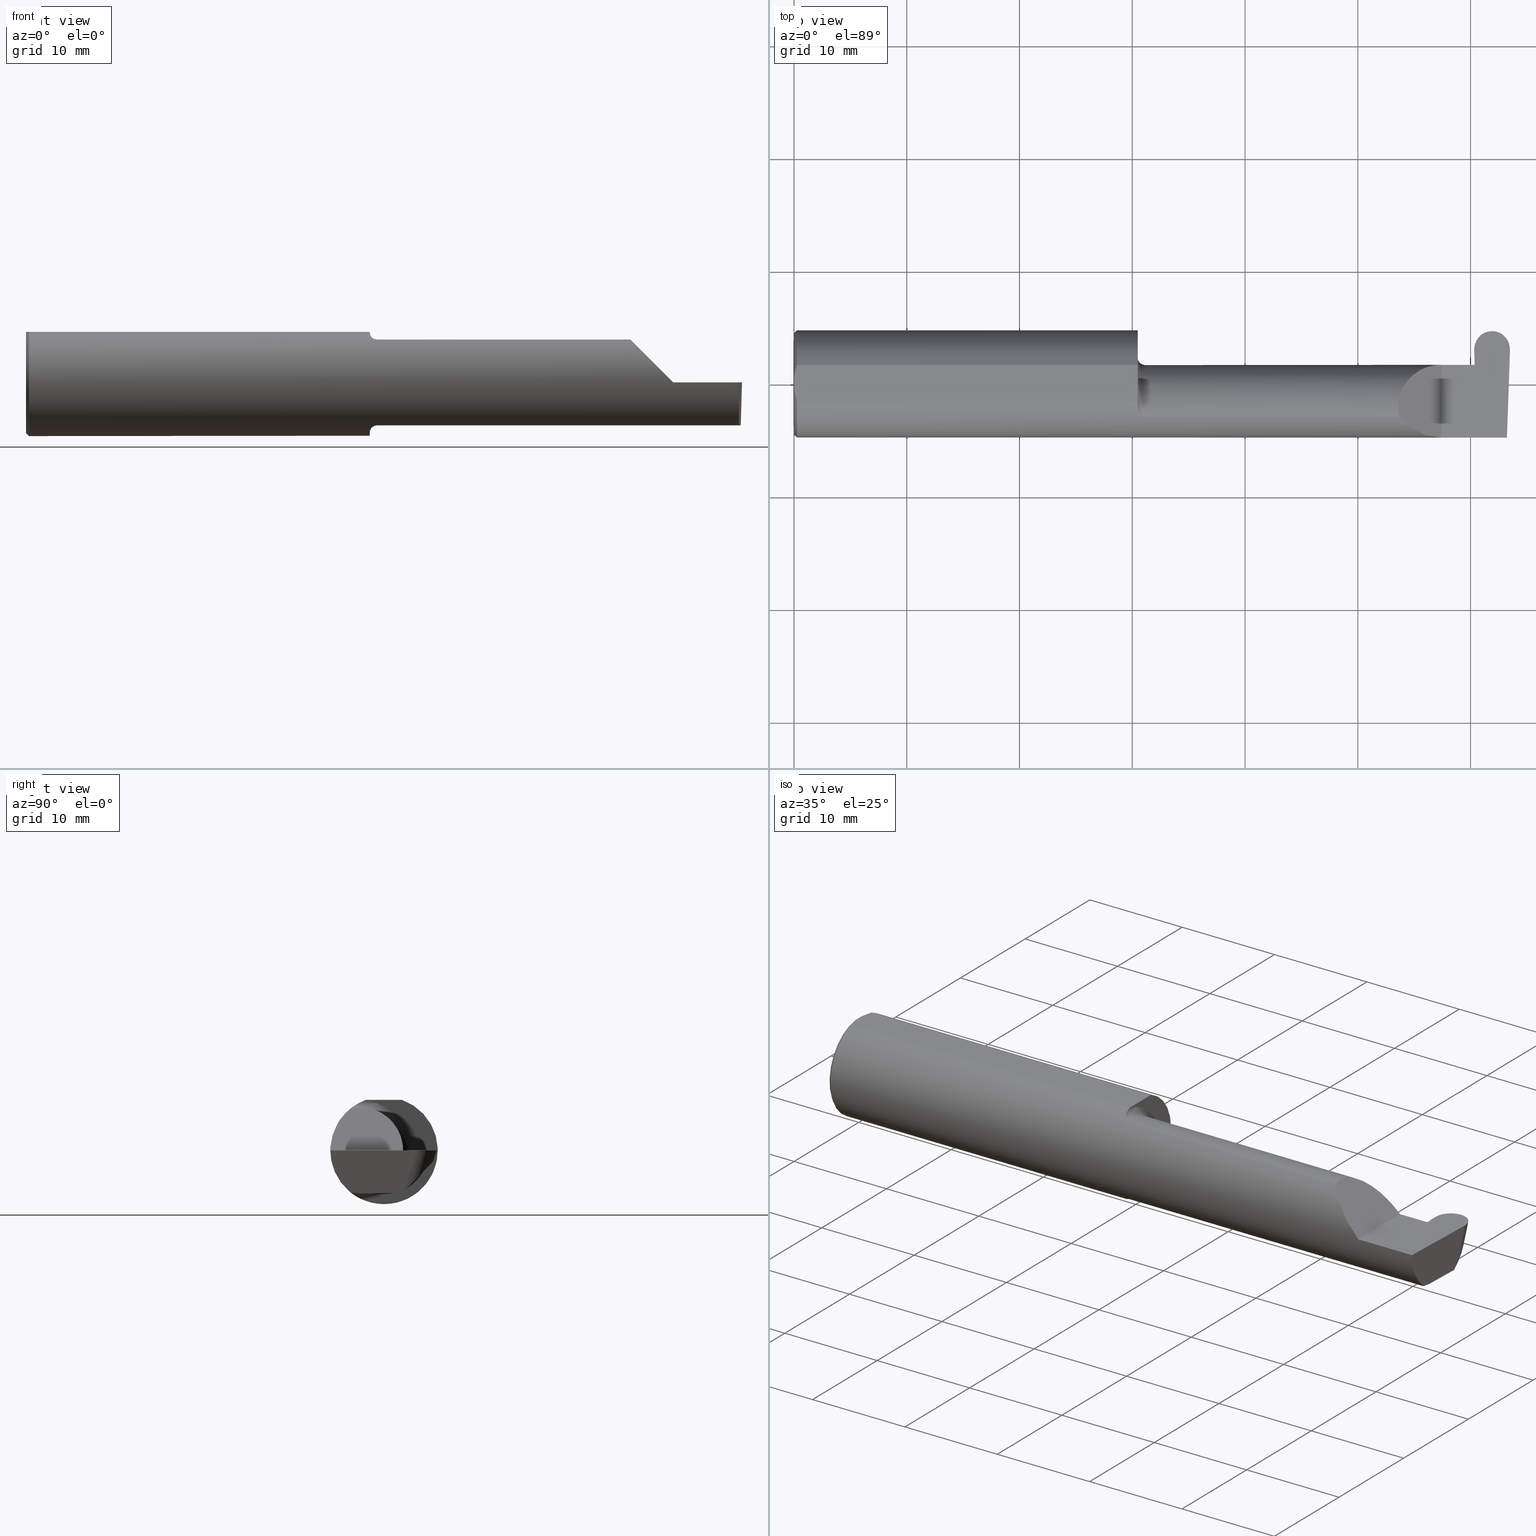
[diagram: canonical four-view strip — front | top / right | iso, engineering-drawing reading convention]
A machine part, canonical four-view strip (front | top / right | iso — engineering-drawing reading convention). The complete STEP part file that produces these views, byte-faithful:
ISO-10303-21;
HEADER;
FILE_DESCRIPTION (( 'STEP AP203' ),
    '1' );
FILE_NAME ('222203-GFR124-20.STEP',
    '2024-06-28T18:56:53',
    ( '' ),
    ( '' ),
    'SwSTEP 2.0',
    'SolidWorks 2024',
    '' );
FILE_SCHEMA (( 'CONFIG_CONTROL_DESIGN' ));
ENDSEC;

DATA;
#1 = CARTESIAN_POINT ( 'NONE',  ( 0.000000000000000000, 0.1873499999999998500, 0.1763499999999999235 ) ) ;
#2 = CARTESIAN_POINT ( 'NONE',  ( 1.202945243422983479, -0.09312071749437436652, 0.1626553472577906001 ) ) ;
#3 = ORIENTED_EDGE ( 'NONE', *, *, #589, .T. ) ;
#4 = LENGTH_MEASURE_WITH_UNIT ( LENGTH_MEASURE( 0.02539999999999999897 ), #649 );
#5 = CARTESIAN_POINT ( 'NONE',  ( 1.200353553376444671, -0.07868116735658677030, 0.1701139256562800572 ) ) ;
#6 = CARTESIAN_POINT ( 'NONE',  ( 0.01000000000000013205, 0.06325108694718235836, 0.1763499999999999235 ) ) ;
#7 = EDGE_CURVE ( 'NONE', #603, #339, #379, .T. ) ;
#8 = CIRCLE ( 'NONE', #465, 0.1873499999999999888 ) ;
#9 = DIRECTION ( 'NONE',  ( 0.000000000000000000, 0.000000000000000000, 1.000000000000000000 ) ) ;
#10 = VECTOR ( 'NONE', #368, 39.37007874015748143 ) ;
#11 = DIRECTION ( 'NONE',  ( -1.000000000000000000, -7.267260269538567824E-17, -0.000000000000000000 ) ) ;
#12 = ORIENTED_EDGE ( 'NONE', *, *, #482, .F. ) ;
#13 = LINE ( 'NONE', #230, #568 ) ;
#14 = CARTESIAN_POINT ( 'NONE',  ( 1.199999999999999956, -0.06851976604679066440, 0.1743704796142198643 ) ) ;
#15 = EDGE_LOOP ( 'NONE', ( #556, #464, #670, #225, #193, #531, #587, #43, #585, #360, #419, #292, #318 ) ) ;
#16 = CARTESIAN_POINT ( 'NONE',  ( 2.475377307836966079, 0.1846499999999998975, -4.652953611126238856E-18 ) ) ;
#17 = EDGE_CURVE ( 'NONE', #704, #325, #497, .T. ) ;
#18 = CARTESIAN_POINT ( 'NONE',  ( 0.000000000000000000, -0.01880691362238934641, 0.1763499999999999235 ) ) ;
#19 = CARTESIAN_POINT ( 'NONE',  ( 2.260000000000000231, 0.06664999999999994540, 1.592040838891559588E-16 ) ) ;
#20 = DATE_AND_TIME ( #345, #56 ) ;
#22 = AXIS2_PLACEMENT_3D ( 'NONE', #569, #458, #296 ) ;
#21 = CARTESIAN_POINT ( 'NONE',  ( 1.225000000000000089, -0.08335000000000007681, 0.000000000000000000 ) ) ;
#23 = CARTESIAN_POINT ( 'NONE',  ( 2.367407066079999733, 0.06655862405286443184, -0.005234924505372787196 ) ) ;
#24 = EDGE_LOOP ( 'NONE', ( #247, #65, #134, #105 ) ) ;
#25 = ADVANCED_BREP_SHAPE_REPRESENTATION ( '222203-GFR124-20', ( #423, #477 ), #438 ) ;
#26 = CALENDAR_DATE ( 2024, 28, 6 ) ;
#27 = CARTESIAN_POINT ( 'NONE',  ( 2.379261785862150980, 0.06409798100086946948, -0.1462050705423017238 ) ) ;
#28 = DIRECTION ( 'NONE',  ( -0.03489949670249634789, 0.9993908270190959842, -0.000000000000000000 ) ) ;
#29 = VERTEX_POINT ( 'NONE', #499 ) ;
#30 = CARTESIAN_POINT ( 'NONE',  ( 0.01000000000000013205, -0.06325108694718235836, 0.1763499999999999235 ) ) ;
#31 = PLANE ( 'NONE',  #22 ) ;
#32 = EDGE_CURVE ( 'NONE', #432, #120, #115, .T. ) ;
#33 = VERTEX_POINT ( 'NONE', #708 ) ;
#34 = DATE_AND_TIME ( #299, #38 ) ;
#35 = APPROVAL ( #91, 'UNSPECIFIED' ) ;
#36 = DIRECTION ( 'NONE',  ( 7.267260269538567824E-17, -1.000000000000000000, 0.000000000000000000 ) ) ;
#37 = AXIS2_PLACEMENT_3D ( 'NONE', #612, #128, #505 ) ;
#38 = LOCAL_TIME ( 11, 56, 53.00000000000000000, #684 ) ;
#39 =( BOUNDED_CURVE ( )  B_SPLINE_CURVE ( 3, ( #683, #462, #347, #616 ),
 .UNSPECIFIED., .F., .F. ) 
 B_SPLINE_CURVE_WITH_KNOTS ( ( 4, 4 ),
 ( 4.712388980384688786, 5.606916381293134855 ),
 .UNSPECIFIED. ) 
 CURVE ( )  GEOMETRIC_REPRESENTATION_ITEM ( )  RATIONAL_B_SPLINE_CURVE ( ( 1.000000000000000000, 0.9344226172588805390, 0.9344226172588805390, 1.000000000000000000 ) ) 
 REPRESENTATION_ITEM ( '' )  );
#40 = VERTEX_POINT ( 'NONE', #216 ) ;
#41 = PERSON_AND_ORGANIZATION_ROLE ( 'creator' ) ;
#42 = CARTESIAN_POINT ( 'NONE',  ( 2.495889335989002422, 0.07225145685232294002, -0.1380515946908277558 ) ) ;
#43 = ORIENTED_EDGE ( 'NONE', *, *, #150, .F. ) ;
#44 = CARTESIAN_POINT ( 'NONE',  ( 2.375802096645578398, 0.1301396316170286283, -0.08016341992612141532 ) ) ;
#45 = ADVANCED_FACE ( 'NONE', ( #222 ), #598, .F. ) ;
#46 = ORIENTED_EDGE ( 'NONE', *, *, #136, .F. ) ;
#47 = CARTESIAN_POINT ( 'NONE',  ( 2.400185001724758571, 0.1718204462013806222, -0.03848260534176896341 ) ) ;
#48 = VERTEX_POINT ( 'NONE', #651 ) ;
#49 = DIRECTION ( 'NONE',  ( -0.03489949670249442581, -0.9993908270190959842, 0.000000000000000000 ) ) ;
#50 = EDGE_LOOP ( 'NONE', ( #146, #494, #314, #503, #511, #607 ) ) ;
#51 = ADVANCED_FACE ( 'NONE', ( #333 ), #116, .F. ) ;
#52 = CARTESIAN_POINT ( 'NONE',  ( 2.370339365822884847, 0.2344171368549177459, 0.02411408531176888886 ) ) ;
#53 = ORIENTED_EDGE ( 'NONE', *, *, #579, .T. ) ;
#54 = CARTESIAN_POINT ( 'NONE',  ( 1.219511795768554396, -0.1163687266324236608, -0.1468371510166787408 ) ) ;
#55 = DIRECTION ( 'NONE',  ( 1.000000000000000000, -0.000000000000000000, -0.000000000000000000 ) ) ;
#57 = LINE ( 'NONE', #1, #110 ) ;
#56 = LOCAL_TIME ( 11, 56, 53.00000000000000000, #251 ) ;
#58 =( BOUNDED_CURVE ( )  B_SPLINE_CURVE ( 3, ( #106, #310, #370, #210 ),
 .UNSPECIFIED., .F., .T. ) 
 B_SPLINE_CURVE_WITH_KNOTS ( ( 4, 4 ),
 ( 5.852427379562172405, 6.746954780470620250 ),
 .UNSPECIFIED. ) 
 CURVE ( )  GEOMETRIC_REPRESENTATION_ITEM ( )  RATIONAL_B_SPLINE_CURVE ( ( 1.000000000000000000, 0.9344226172588802060, 0.9344226172588802060, 1.000000000000000000 ) ) 
 REPRESENTATION_ITEM ( '' )  );
#59 = VERTEX_POINT ( 'NONE', #76 ) ;
#60 = DIRECTION ( 'NONE',  ( 0.000000000000000000, 0.9510565162951534202, -0.3090169943749481174 ) ) ;
#61 = DIRECTION ( 'NONE',  ( -1.000000000000000000, -7.267260269538567824E-17, -0.000000000000000000 ) ) ;
#62 = EDGE_LOOP ( 'NONE', ( #434, #302, #229, #214 ) ) ;
#63 = CARTESIAN_POINT ( 'NONE',  ( 2.489235021721937002, -0.1873499999999999888, 0.000000000000000000 ) ) ;
#64 = DIRECTION ( 'NONE',  ( 0.000000000000000000, 1.000000000000000000, 0.000000000000000000 ) ) ;
#65 = ORIENTED_EDGE ( 'NONE', *, *, #111, .T. ) ;
#66 = DIRECTION ( 'NONE',  ( -0.000000000000000000, 1.000000000000000000, -0.000000000000000000 ) ) ;
#67 = AXIS2_PLACEMENT_3D ( 'NONE', #169, #342, #165 ) ;
#68 = CARTESIAN_POINT ( 'NONE',  ( 2.437939523532632435, 0.1846500000000000363, 0.000000000000000000 ) ) ;
#69 = ORIENTED_EDGE ( 'NONE', *, *, #471, .F. ) ;
#70 = EDGE_CURVE ( 'NONE', #173, #124, #673, .T. ) ;
#71 = CARTESIAN_POINT ( 'NONE',  ( 2.378834654010996807, 0.07225145685232267634, -0.1380515946908280056 ) ) ;
#72 = CARTESIAN_POINT ( 'NONE',  ( 1.199999999999999956, 0.000000000000000000, 0.000000000000000000 ) ) ;
#73 = CARTESIAN_POINT ( 'NONE',  ( 2.376713715390371906, 0.06655862405288431871, -0.005234924505376662568 ) ) ;
#74 = EDGE_CURVE ( 'NONE', #421, #59, #39, .T. ) ;
#75 = PLANE ( 'NONE',  #428 ) ;
#76 = CARTESIAN_POINT ( 'NONE',  ( 2.113883229301068312, -0.1172600179964009698, 0.1461167706989301152 ) ) ;
#77 = ORIENTED_EDGE ( 'NONE', *, *, #218, .F. ) ;
#79 = VECTOR ( 'NONE', #509, 39.37007874015748143 ) ;
#78 = CARTESIAN_POINT ( 'NONE',  ( 2.090221225029925911, -0.01530148607434185341, 0.1697787749700727655 ) ) ;
#80 = CIRCLE ( 'NONE', #37, 0.1773499999999999521 ) ;
#81 = CARTESIAN_POINT ( 'NONE',  ( 2.379376900814295315, -0.08346159389558735486, -0.1500000000000000500 ) ) ;
#82 = ORIENTED_EDGE ( 'NONE', *, *, #599, .T. ) ;
#83 = CARTESIAN_POINT ( 'NONE',  ( 0.000000000000000000, 0.000000000000000000, 0.000000000000000000 ) ) ;
#84 = PLANE ( 'NONE',  #157 ) ;
#85 = EDGE_CURVE ( 'NONE', #240, #442, #324, .T. ) ;
#86 = DIRECTION ( 'NONE',  ( 1.000000000000000000, 0.000000000000000000, 0.000000000000000000 ) ) ;
#87 = VERTEX_POINT ( 'NONE', #400 ) ;
#88 = PERSON_AND_ORGANIZATION ( #95, #373 ) ;
#89 = FACE_OUTER_BOUND ( 'NONE', #540, .T. ) ;
#90 = ORIENTED_EDGE ( 'NONE', *, *, #614, .F. ) ;
#91 = APPROVAL_STATUS ( 'not_yet_approved' ) ;
#92 = DIRECTION ( 'NONE',  ( -0.000000000000000000, 1.000000000000000000, -0.000000000000000000 ) ) ;
#93 = AXIS2_PLACEMENT_3D ( 'NONE', #658, #389, #60 ) ;
#94 = EDGE_CURVE ( 'NONE', #124, #139, #613, .T. ) ;
#95 = PERSON ( 'UNSPECIFIED', 'UNSPECIFIED', 'UNSPECIFIED', ('UNSPECIFIED'), ('UNSPECIFIED'), ('UNSPECIFIED') ) ;
#96 = CARTESIAN_POINT ( 'NONE',  ( 1.202960551809340028, -0.09317341542745755101, -0.1626248379125195820 ) ) ;
#97 = ORIENTED_EDGE ( 'NONE', *, *, #313, .T. ) ;
#98 = CARTESIAN_POINT ( 'NONE',  ( 1.201843912362378308, -0.08846956905169099661, -0.1652353808078971809 ) ) ;
#99 = EDGE_LOOP ( 'NONE', ( #107, #209, #305, #167 ) ) ;
#100 = CARTESIAN_POINT ( 'NONE',  ( 2.367467983378090501, 0.06661954135095482510, -0.001744974835124260808 ) ) ;
#101 = CONICAL_SURFACE ( 'NONE', #486, 0.1773499999999999521, 0.7853981633974431720 ) ;
#102 = VERTEX_POINT ( 'NONE', #23 ) ;
#103 = CARTESIAN_POINT ( 'NONE',  ( 1.199999999999999956, -0.07368234487347197215, -0.1723418180300747837 ) ) ;
#104 = EDGE_CURVE ( 'NONE', #377, #156, #406, .T. ) ;
#105 = ORIENTED_EDGE ( 'NONE', *, *, #542, .T. ) ;
#106 = CARTESIAN_POINT ( 'NONE',  ( 2.489130585478359858, -0.1172600179964006645, -0.1461167706989303094 ) ) ;
#107 = ORIENTED_EDGE ( 'NONE', *, *, #272, .T. ) ;
#108 = DIRECTION ( 'NONE',  ( 0.9992386149554828290, 0.03489418134010904143, 0.01745240643728359145 ) ) ;
#109 = CARTESIAN_POINT ( 'NONE',  ( -0.001039370078739994957, 0.1723030515431495657, -0.03799999999999999906 ) ) ;
#110 = VECTOR ( 'NONE', #66, 39.37007874015748143 ) ;
#111 = EDGE_CURVE ( 'NONE', #120, #617, #354, .T. ) ;
#113 = CARTESIAN_POINT ( 'NONE',  ( 2.437939523532632435, 0.1846500000000000363, 0.000000000000000000 ) ) ;
#112 = APPROVAL_PERSON_ORGANIZATION ( #194, #127, #624 ) ;
#114 = CARTESIAN_POINT ( 'NONE',  ( 0.01000000000000013205, 0.06325108694718235836, 0.1763499999999999235 ) ) ;
#115 = LINE ( 'NONE', #219, #148 ) ;
#116 = PLANE ( 'NONE',  #681 ) ;
#117 = CARTESIAN_POINT ( 'NONE',  ( 2.379331556216794041, 0.06030305154315079852, -0.1500000000000000500 ) ) ;
#118 = CARTESIAN_POINT ( 'NONE',  ( 0.001595548104417008695, -0.03385300050298640367, 0.1763499999999999235 ) ) ;
#119 = ADVANCED_FACE ( 'NONE', ( #412 ), #31, .F. ) ;
#120 = VERTEX_POINT ( 'NONE', #142 ) ;
#121 = DIRECTION ( 'NONE',  ( -1.000000000000000000, -0.000000000000000000, -0.000000000000000000 ) ) ;
#122 = VECTOR ( 'NONE', #427, 39.37007874015748143 ) ;
#123 = LINE ( 'NONE', #490, #317 ) ;
#124 = VERTEX_POINT ( 'NONE', #455 ) ;
#125 = EDGE_CURVE ( 'NONE', #120, #156, #397, .T. ) ;
#126 = PERSON_AND_ORGANIZATION ( #95, #373 ) ;
#127 = APPROVAL ( #516, 'UNSPECIFIED' ) ;
#128 = DIRECTION ( 'NONE',  ( -1.000000000000000000, -0.000000000000000000, -0.000000000000000000 ) ) ;
#129 =( BOUNDED_CURVE ( )  B_SPLINE_CURVE ( 3, ( #642, #422, #638, #703 ),
 .UNSPECIFIED., .F., .F. ) 
 B_SPLINE_CURVE_WITH_KNOTS ( ( 4, 4 ),
 ( 0.8789888184544196736, 1.107026853503863650 ),
 .UNSPECIFIED. ) 
 CURVE ( )  GEOMETRIC_REPRESENTATION_ITEM ( )  RATIONAL_B_SPLINE_CURVE ( ( 1.000000000000000000, 0.9956712472009929815, 0.9956712472009929815, 1.000000000000000000 ) ) 
 REPRESENTATION_ITEM ( '' )  );
#130 = DIRECTION ( 'NONE',  ( 1.000000000000000000, 7.267260269538567824E-17, 0.000000000000000000 ) ) ;
#131 = ORIENTED_EDGE ( 'NONE', *, *, #528, .T. ) ;
#132 = CARTESIAN_POINT ( 'NONE',  ( 1.199999999999999956, -0.08335000000000007681, 0.000000000000000000 ) ) ;
#133 = CARTESIAN_POINT ( 'NONE',  ( 2.376713715390371906, 0.06655862405288431871, -0.005234924505376662568 ) ) ;
#134 = ORIENTED_EDGE ( 'NONE', *, *, #282, .T. ) ;
#135 = APPROVAL_STATUS ( 'not_yet_approved' ) ;
#136 = EDGE_CURVE ( 'NONE', #139, #48, #349, .T. ) ;
#137 = DIRECTION ( 'NONE',  ( 1.000000000000000000, 0.000000000000000000, 0.000000000000000000 ) ) ;
#138 = CARTESIAN_POINT ( 'NONE',  ( 1.199999999999999956, -0.06325108694718287183, 0.1763499999999999235 ) ) ;
#139 = VERTEX_POINT ( 'NONE', #356 ) ;
#140 = SECURITY_CLASSIFICATION_LEVEL ( 'unclassified' ) ;
#141 = CARTESIAN_POINT ( 'NONE',  ( 2.495263401164271588, 0.06030305154315080546, -0.1500000000000000222 ) ) ;
#142 = CARTESIAN_POINT ( 'NONE',  ( 2.379376865616626979, -0.08334999999999999354, -0.1499999999999999944 ) ) ;
#143 = ORIENTED_EDGE ( 'NONE', *, *, #410, .F. ) ;
#144 = DATE_AND_TIME ( #26, #429 ) ;
#145 = FACE_OUTER_BOUND ( 'NONE', #233, .T. ) ;
#146 = ORIENTED_EDGE ( 'NONE', *, *, #471, .T. ) ;
#147 = DIRECTION ( 'NONE',  ( -1.000000000000000000, 0.000000000000000000, 1.224646799147353947E-16 ) ) ;
#148 = VECTOR ( 'NONE', #610, 39.37007874015748143 ) ;
#149 = VECTOR ( 'NONE', #341, 39.37007874015748854 ) ;
#150 = EDGE_CURVE ( 'NONE', #416, #158, #677, .T. ) ;
#151 = VERTEX_POINT ( 'NONE', #622 ) ;
#152 = DIRECTION ( 'NONE',  ( -0.03701744261649831530, -0.7066221440565398915, -0.7066221440565479961 ) ) ;
#153 = ORIENTED_EDGE ( 'NONE', *, *, #163, .F. ) ;
#154 =( BOUNDED_CURVE ( )  B_SPLINE_CURVE ( 3, ( #647, #44, #47, #161 ),
 .UNSPECIFIED., .F., .T. ) 
 B_SPLINE_CURVE_WITH_KNOTS ( ( 4, 4 ),
 ( 1.556955361882040645, 3.147272355854425108 ),
 .UNSPECIFIED. ) 
 CURVE ( )  GEOMETRIC_REPRESENTATION_ITEM ( )  RATIONAL_B_SPLINE_CURVE ( ( 1.000000000000000000, 0.8001144080103659295, 0.8001144080103659295, 1.000000000000000000 ) ) 
 REPRESENTATION_ITEM ( '' )  );
#155 = LINE ( 'NONE', #592, #476 ) ;
#156 = VERTEX_POINT ( 'NONE', #73 ) ;
#157 = AXIS2_PLACEMENT_3D ( 'NONE', #253, #195, #578 ) ;
#158 = VERTEX_POINT ( 'NONE', #138 ) ;
#159 = CARTESIAN_POINT ( 'NONE',  ( 1.213203859946834218, -0.1120371980050639676, -0.1501764597936558476 ) ) ;
#160 = ORIENTED_EDGE ( 'NONE', *, *, #125, .F. ) ;
#161 = CARTESIAN_POINT ( 'NONE',  ( 2.437361994999999837, 0.1722997177119686418, -0.03800333383118095765 ) ) ;
#162 = EDGE_LOOP ( 'NONE', ( #533, #552, #261, #590, #286 ) ) ;
#163 = EDGE_CURVE ( 'NONE', #479, #151, #259, .T. ) ;
#164 = CARTESIAN_POINT ( 'NONE',  ( 2.376870536005303070, 0.1941621689924810101, -0.01614088255066831179 ) ) ;
#165 = DIRECTION ( 'NONE',  ( 0.000000000000000000, 0.000000000000000000, -1.000000000000000000 ) ) ;
#166 = VECTOR ( 'NONE', #239, 39.37007874015748854 ) ;
#167 = ORIENTED_EDGE ( 'NONE', *, *, #459, .T. ) ;
#168 =( NAMED_UNIT ( * ) PLANE_ANGLE_UNIT ( ) SI_UNIT ( $, .RADIAN. ) );
#169 = CARTESIAN_POINT ( 'NONE',  ( 0.01000000000000013205, 0.000000000000000000, 0.000000000000000000 ) ) ;
#170 = ORIENTED_EDGE ( 'NONE', *, *, #449, .T. ) ;
#171 = DIRECTION ( 'NONE',  ( 0.02739170151060025399, 0.3089010440752013031, 0.9506996579664918068 ) ) ;
#172 = DIRECTION ( 'NONE',  ( 1.000000000000000000, 7.267260269538567824E-17, 0.000000000000000000 ) ) ;
#173 = VERTEX_POINT ( 'NONE', #19 ) ;
#174 = B_SPLINE_CURVE_WITH_KNOTS ( 'NONE', 3,
 ( #176, #179, #118, #18 ),
 .UNSPECIFIED., .F., .F.,
 ( 4, 4 ),
 ( 0.009771445421851331775, 0.01092787937989104369 ),
 .UNSPECIFIED. ) ;
#175 = LINE ( 'NONE', #550, #451 ) ;
#176 = CARTESIAN_POINT ( 'NONE',  ( 0.01000000000000013205, -0.06325108694718235836, 0.1763499999999999235 ) ) ;
#177 = CARTESIAN_POINT ( 'NONE',  ( 0.005155213631852488369, 0.04890080824240059659, 0.1763499999999999235 ) ) ;
#178 = AXIS2_PLACEMENT_3D ( 'NONE', #109, #545, #439 ) ;
#179 = CARTESIAN_POINT ( 'NONE',  ( 0.005151108632379722968, -0.04888864921576022843, 0.1763499999999999235 ) ) ;
#180 = CARTESIAN_POINT ( 'NONE',  ( 2.495889335989002422, 0.07225145685232294002, -0.1380515946908277558 ) ) ;
#181 = SHAPE_DEFINITION_REPRESENTATION ( #689, #25 ) ;
#182 = CARTESIAN_POINT ( 'NONE',  ( 2.399346682163034039, 0.1846500000000001473, 1.238963249943322756E-17 ) ) ;
#183 = ADVANCED_FACE ( 'NONE', ( #450 ), #669, .F. ) ;
#184 = ORIENTED_EDGE ( 'NONE', *, *, #557, .T. ) ;
#185 = APPROVAL_DATE_TIME ( #144, #127 ) ;
#186 = DIRECTION ( 'NONE',  ( -1.000000000000000000, -7.267260269538567824E-17, -0.000000000000000000 ) ) ;
#187 = CARTESIAN_POINT ( 'NONE',  ( 0.000000000000000000, -0.06325108694718235836, 0.1763499999999999235 ) ) ;
#188 = MECHANICAL_CONTEXT ( 'NONE', #374, 'mechanical' ) ;
#190 = CARTESIAN_POINT ( 'NONE',  ( 1.225000000000000089, -0.1172600179964008033, 0.1461167706989302262 ) ) ;
#189 = AXIS2_PLACEMENT_3D ( 'NONE', #290, #402, #574 ) ;
#191 = LOCAL_TIME ( 11, 56, 53.00000000000000000, #573 ) ;
#192 = CARTESIAN_POINT ( 'NONE',  ( 2.474538988275240659, 0.1718204462013807887, -0.03848260534176874831 ) ) ;
#193 = ORIENTED_EDGE ( 'NONE', *, *, #500, .F. ) ;
#194 = PERSON_AND_ORGANIZATION ( #95, #373 ) ;
#195 = DIRECTION ( 'NONE',  ( 0.000000000000000000, -0.9510565162951534202, 0.3090169943749482284 ) ) ;
#196 = ADVANCED_FACE ( 'NONE', ( #437 ), #496, .T. ) ;
#197 = ORIENTED_EDGE ( 'NONE', *, *, #702, .F. ) ;
#198 = PRODUCT ( '222203-GFR124-20', '222203-GFR124-20', '', ( #188 ) ) ;
#199 = FACE_OUTER_BOUND ( 'NONE', #660, .T. ) ;
#200 = EDGE_CURVE ( 'NONE', #416, #623, #436, .T. ) ;
#201 = ORIENTED_EDGE ( 'NONE', *, *, #322, .T. ) ;
#202 = CC_DESIGN_DATE_AND_TIME_ASSIGNMENT ( #519, #453, ( #328 ) ) ;
#203 = CARTESIAN_POINT ( 'NONE',  ( 1.208439486659307116, -0.1064616213911159653, -0.1542305641651500192 ) ) ;
#204 = APPLICATION_CONTEXT ( 'configuration controlled 3d designs of mechanical parts and assemblies' ) ;
#205 = AXIS2_PLACEMENT_3D ( 'NONE', #572, #301, #507 ) ;
#206 = AXIS2_PLACEMENT_3D ( 'NONE', #433, #288, #64 ) ;
#207 = EDGE_LOOP ( 'NONE', ( #184, #473, #646, #170, #648, #426, #77, #160, #257, #615 ) ) ;
#208 = DIRECTION ( 'NONE',  ( 0.000000000000000000, 0.000000000000000000, 1.000000000000000000 ) ) ;
#209 = ORIENTED_EDGE ( 'NONE', *, *, #385, .F. ) ;
#210 = CARTESIAN_POINT ( 'NONE',  ( 2.489235021721937002, -0.1873499999999999888, 0.000000000000000000 ) ) ;
#211 = ORIENTED_EDGE ( 'NONE', *, *, #111, .F. ) ;
#212 = LINE ( 'NONE', #323, #382 ) ;
#213 = VECTOR ( 'NONE', #284, 39.37007874015748143 ) ;
#214 = ORIENTED_EDGE ( 'NONE', *, *, #266, .F. ) ;
#215 = CARTESIAN_POINT ( 'NONE',  ( 2.490542817754151539, -0.07487677063221377660, -0.1500000000000000500 ) ) ;
#216 = CARTESIAN_POINT ( 'NONE',  ( 1.199999999999999956, -0.06851976604679066440, 0.1743704796142198643 ) ) ;
#217 = CARTESIAN_POINT ( 'NONE',  ( 1.208475602106622082, -0.1064978748893407601, 0.1542035505680382779 ) ) ;
#218 = EDGE_CURVE ( 'NONE', #156, #102, #655, .T. ) ;
#219 = CARTESIAN_POINT ( 'NONE',  ( 2.733184360054361939, -0.08334999999999997966, -0.1500000000000000500 ) ) ;
#220 =( CONVERSION_BASED_UNIT ( 'INCH', #4 ) LENGTH_UNIT ( ) NAMED_UNIT ( #515 ) );
#221 = CARTESIAN_POINT ( 'NONE',  ( 2.260000000000000231, -0.2500000000000000555, 2.939152317953647352E-17 ) ) ;
#222 = FACE_OUTER_BOUND ( 'NONE', #50, .T. ) ;
#223 = PLANE ( 'NONE',  #236 ) ;
#224 = DIRECTION ( 'NONE',  ( -0.7071067811865441310, 0.000000000000000000, -0.7071067811865510144 ) ) ;
#225 = ORIENTED_EDGE ( 'NONE', *, *, #74, .T. ) ;
#226 = EDGE_CURVE ( 'NONE', #158, #40, #8, .T. ) ;
#227 = CARTESIAN_POINT ( 'NONE',  ( 1.213163223656403167, -0.1119926267047278573, 0.1502091925606061362 ) ) ;
#228 = CC_DESIGN_PERSON_AND_ORGANIZATION_ASSIGNMENT ( #306, #352, ( #696 ) ) ;
#229 = ORIENTED_EDGE ( 'NONE', *, *, #17, .T. ) ;
#230 = CARTESIAN_POINT ( 'NONE',  ( 0.000000000000000000, 0.06325108694718235836, 0.1763499999999999235 ) ) ;
#231 = CARTESIAN_POINT ( 'NONE',  ( 1.199999999999999956, 0.1873499999999998222, 0.000000000000000000 ) ) ;
#232 = CARTESIAN_POINT ( 'NONE',  ( 2.374762147380223620, 0.1198259601510516803, 0.000000000000000000 ) ) ;
#233 = EDGE_LOOP ( 'NONE', ( #643, #265, #691 ) ) ;
#234 = VECTOR ( 'NONE', #130, 39.37007874015748143 ) ;
#235 = APPROVAL_DATE_TIME ( #20, #35 ) ;
#236 = AXIS2_PLACEMENT_3D ( 'NONE', #327, #440, #543 ) ;
#237 = DIRECTION ( 'NONE',  ( 0.9998367324388628408, 0.0003153570480505217283, 0.01806679318280387733 ) ) ;
#238 = EDGE_CURVE ( 'NONE', #87, #240, #472, .T. ) ;
#239 = DIRECTION ( 'NONE',  ( -0.0003154085283454461015, 0.9999999502587288980, 0.000000000000000000 ) ) ;
#240 = VERTEX_POINT ( 'NONE', #609 ) ;
#241 = PERSON_AND_ORGANIZATION_ROLE ( 'creator' ) ;
#242 = CARTESIAN_POINT ( 'NONE',  ( 2.376619092827160884, 0.06664999999999994540, -4.822780832875213987E-21 ) ) ;
#243 = DIRECTION ( 'NONE',  ( -0.01806954526206913658, 0.01744955702544874129, 0.9996844524616943506 ) ) ;
#244 = COORDINATED_UNIVERSAL_TIME_OFFSET ( 8, 0, .BEHIND. ) ;
#245 = LINE ( 'NONE', #353, #79 ) ;
#246 = CARTESIAN_POINT ( 'NONE',  ( 2.379376865616626979, -0.08334999999999999354, -0.1499999999999999944 ) ) ;
#247 = ORIENTED_EDGE ( 'NONE', *, *, #32, .T. ) ;
#249 = DIRECTION ( 'NONE',  ( -1.224646799147353947E-16, 0.000000000000000000, -1.000000000000000000 ) ) ;
#248 = AXIS2_PLACEMENT_3D ( 'NONE', #21, #359, #36 ) ;
#250 = ORIENTED_EDGE ( 'NONE', *, *, #94, .F. ) ;
#251 = COORDINATED_UNIVERSAL_TIME_OFFSET ( 8, 0, .BEHIND. ) ;
#252 = EDGE_CURVE ( 'NONE', #704, #479, #80, .T. ) ;
#253 = CARTESIAN_POINT ( 'NONE',  ( -0.001039370078739994957, 0.1846500000000000363, 0.000000000000000000 ) ) ;
#254 = APPROVAL ( #135, 'UNSPECIFIED' ) ;
#255 = EDGE_LOOP ( 'NONE', ( #309, #481, #452, #311, #549, #663 ) ) ;
#256 = LINE ( 'NONE', #635, #407 ) ;
#257 = ORIENTED_EDGE ( 'NONE', *, *, #32, .F. ) ;
#258 = CARTESIAN_POINT ( 'NONE',  ( 2.367437524729044895, 0.06658908270190962153, -0.003489949670248522050 ) ) ;
#259 = CIRCLE ( 'NONE', #205, 0.1773499999999999521 ) ;
#260 = ADVANCED_FACE ( 'NONE', ( #276 ), #493, .T. ) ;
#261 = ORIENTED_EDGE ( 'NONE', *, *, #238, .T. ) ;
#262 = LINE ( 'NONE', #588, #591 ) ;
#263 = ORIENTED_EDGE ( 'NONE', *, *, #575, .T. ) ;
#264 = LINE ( 'NONE', #215, #10 ) ;
#265 = ORIENTED_EDGE ( 'NONE', *, *, #606, .T. ) ;
#266 = EDGE_CURVE ( 'NONE', #623, #325, #329, .T. ) ;
#267 = FACE_OUTER_BOUND ( 'NONE', #15, .T. ) ;
#268 = VECTOR ( 'NONE', #291, 39.37007874015748143 ) ;
#269 = AXIS2_PLACEMENT_3D ( 'NONE', #512, #237, #454 ) ;
#270 = ORIENTED_EDGE ( 'NONE', *, *, #94, .T. ) ;
#271 = CARTESIAN_POINT ( 'NONE',  ( 2.501240488363984493, 0.1564415835413277001, -7.820279735944560344E-18 ) ) ;
#272 = EDGE_CURVE ( 'NONE', #430, #678, #293, .T. ) ;
#273 = DIRECTION ( 'NONE',  ( 1.000000000000000000, -0.000000000000000000, -0.000000000000000000 ) ) ;
#274 = CARTESIAN_POINT ( 'NONE',  ( 0.001616639753276021213, 0.03405189565400638246, 0.1763499999999999235 ) ) ;
#275 = PLANE ( 'NONE',  #544 ) ;
#276 = FACE_OUTER_BOUND ( 'NONE', #207, .T. ) ;
#277 = B_SPLINE_CURVE_WITH_KNOTS ( 'NONE', 3,
 ( #14, #562, #5, #399, #2, #390, #217, #227, #387, #381, #554, #502 ),
 .UNSPECIFIED., .F., .F.,
 ( 4, 2, 2, 2, 2, 4 ),
 ( 4.423516731080811751E-05, 0.0004615475116586740113, 0.0008788598560065399119, 0.001296172200354405758, 0.001504828372528336025, 0.001713484544702266509 ),
 .UNSPECIFIED. ) ;
#278 = CARTESIAN_POINT ( 'NONE',  ( -0.001039370078739994957, 0.1846500000000000363, 0.000000000000000000 ) ) ;
#279 = FACE_OUTER_BOUND ( 'NONE', #24, .T. ) ;
#280 = DIRECTION ( 'NONE',  ( 1.000000000000000000, 0.000000000000000000, -0.000000000000000000 ) ) ;
#281 = ORIENTED_EDGE ( 'NONE', *, *, #596, .F. ) ;
#282 = EDGE_CURVE ( 'NONE', #617, #369, #123, .T. ) ;
#283 = VECTOR ( 'NONE', #49, 39.37007874015748854 ) ;
#284 = DIRECTION ( 'NONE',  ( -0.02739170151060026093, -0.3089010440752013587, -0.9506996579664918068 ) ) ;
#285 = CARTESIAN_POINT ( 'NONE',  ( 0.01000000000000013205, 0.000000000000000000, 0.000000000000000000 ) ) ;
#286 = ORIENTED_EDGE ( 'NONE', *, *, #491, .F. ) ;
#287 = DIRECTION ( 'NONE',  ( -0.01299916717458399554, 0.7070470357949164564, 0.7070470357949245610 ) ) ;
#288 = DIRECTION ( 'NONE',  ( 1.000000000000000000, 7.267260269538567824E-17, 0.000000000000000000 ) ) ;
#289 = DATE_AND_TIME ( #671, #191 ) ;
#290 = CARTESIAN_POINT ( 'NONE',  ( 1.225000000000000089, -0.08335000000000007681, 0.000000000000000000 ) ) ;
#291 = DIRECTION ( 'NONE',  ( 1.000000000000000000, -8.424094563689993078E-15, -0.000000000000000000 ) ) ;
#292 = ORIENTED_EDGE ( 'NONE', *, *, #272, .F. ) ;
#293 = CIRCLE ( 'NONE', #206, 0.1873499999999999888 ) ;
#294 = CC_DESIGN_APPROVAL ( #127, ( #487 ) ) ;
#295 = CARTESIAN_POINT ( 'NONE',  ( 1.199999999999999956, -0.06851976604679066440, -0.1743704796142198643 ) ) ;
#296 = DIRECTION ( 'NONE',  ( 0.000000000000000000, 0.000000000000000000, -1.000000000000000000 ) ) ;
#297 = EDGE_LOOP ( 'NONE', ( #570, #337, #518 ) ) ;
#298 = CC_DESIGN_PERSON_AND_ORGANIZATION_ASSIGNMENT ( #126, #398, ( #198 ) ) ;
#299 = CALENDAR_DATE ( 2024, 28, 6 ) ;
#300 = DIRECTION ( 'NONE',  ( 0.000000000000000000, 0.000000000000000000, -1.000000000000000000 ) ) ;
#301 = DIRECTION ( 'NONE',  ( -1.000000000000000000, -0.000000000000000000, -0.000000000000000000 ) ) ;
#302 = ORIENTED_EDGE ( 'NONE', *, *, #252, .F. ) ;
#303 = APPLICATION_PROTOCOL_DEFINITION ( 'international standard', 'config_control_design', 1994, #374 ) ;
#304 = LINE ( 'NONE', #411, #621 ) ;
#305 = ORIENTED_EDGE ( 'NONE', *, *, #226, .T. ) ;
#306 = PERSON_AND_ORGANIZATION ( #95, #373 ) ;
#308 = CARTESIAN_POINT ( 'NONE',  ( 2.373483501636015180, 0.1564415835413277278, 1.555695862425156831E-17 ) ) ;
#307 = VECTOR ( 'NONE', #680, 39.37007874015748854 ) ;
#309 = ORIENTED_EDGE ( 'NONE', *, *, #150, .T. ) ;
#310 = CARTESIAN_POINT ( 'NONE',  ( 2.488188068920404561, -0.1623470442677541203, -0.1099340280425338823 ) ) ;
#311 = ORIENTED_EDGE ( 'NONE', *, *, #17, .F. ) ;
#312 = LINE ( 'NONE', #539, #522 ) ;
#313 = EDGE_CURVE ( 'NONE', #416, #151, #174, .T. ) ;
#314 = ORIENTED_EDGE ( 'NONE', *, *, #85, .T. ) ;
#315 = CARTESIAN_POINT ( 'NONE',  ( 0.000000000000000000, 0.000000000000000000, 0.000000000000000000 ) ) ;
#316 = VECTOR ( 'NONE', #61, 39.37007874015748143 ) ;
#317 = VECTOR ( 'NONE', #273, 39.37007874015748143 ) ;
#318 = ORIENTED_EDGE ( 'NONE', *, *, #524, .F. ) ;
#319 = LINE ( 'NONE', #537, #213 ) ;
#320 = EDGE_LOOP ( 'NONE', ( #527, #593, #263, #270 ) ) ;
#321 = UNCERTAINTY_MEASURE_WITH_UNIT (LENGTH_MEASURE( 1.000000000000000082E-05 ), #220, 'distance_accuracy_value', 'NONE');
#322 = EDGE_CURVE ( 'NONE', #40, #351, #277, .T. ) ;
#323 = CARTESIAN_POINT ( 'NONE',  ( 2.374834014638854018, 0.1173673719240848623, 0.0008009143901308464746 ) ) ;
#324 =( BOUNDED_CURVE ( )  B_SPLINE_CURVE ( 3, ( #403, #192, #510, #180 ),
 .UNSPECIFIED., .F., .F. ) 
 B_SPLINE_CURVE_WITH_KNOTS ( ( 4, 4 ),
 ( 3.135912951325158016, 4.726229945297544255 ),
 .UNSPECIFIED. ) 
 CURVE ( )  GEOMETRIC_REPRESENTATION_ITEM ( )  RATIONAL_B_SPLINE_CURVE ( ( 1.000000000000000000, 0.8001144080103654854, 0.8001144080103654854, 1.000000000000000000 ) ) 
 REPRESENTATION_ITEM ( '' )  );
#325 = VERTEX_POINT ( 'NONE', #114 ) ;
#326 = ADVANCED_FACE ( 'NONE', ( #332 ), #551, .T. ) ;
#327 = CARTESIAN_POINT ( 'NONE',  ( 2.376619092827160884, 0.06664999999999994540, 0.000000000000000000 ) ) ;
#328 = PRODUCT_DEFINITION ( 'UNKNOWN', '', #487, #701 ) ;
#329 = CIRCLE ( 'NONE', #67, 0.1873499999999999888 ) ;
#330 = CARTESIAN_POINT ( 'NONE',  ( 2.499961842619776053, 0.1198259601510516942, 0.000000000000000000 ) ) ;
#331 = CARTESIAN_POINT ( 'NONE',  ( 2.434955354293950602, 0.2052772202506527588, 0.06348405618312173704 ) ) ;
#332 = FACE_OUTER_BOUND ( 'NONE', #255, .T. ) ;
#333 = FACE_OUTER_BOUND ( 'NONE', #456, .T. ) ;
#334 = CARTESIAN_POINT ( 'NONE',  ( 2.499866899295296374, 0.1171071390637351134, 0.000000000000000000 ) ) ;
#335 = DIRECTION ( 'NONE',  ( 0.000000000000000000, -1.000000000000000000, 0.000000000000000000 ) ) ;
#336 = EDGE_CURVE ( 'NONE', #603, #48, #690, .T. ) ;
#337 = ORIENTED_EDGE ( 'NONE', *, *, #74, .F. ) ;
#338 = CARTESIAN_POINT ( 'NONE',  ( 1.199999999999999956, 0.06325108694718235836, 0.1763499999999999235 ) ) ;
#339 = VERTEX_POINT ( 'NONE', #68 ) ;
#340 = CIRCLE ( 'NONE', #667, 0.1749999999999999889 ) ;
#341 = DIRECTION ( 'NONE',  ( -0.02739170151060085420, 0.3089010440752013587, 0.9506996579664918068 ) ) ;
#342 = DIRECTION ( 'NONE',  ( 1.000000000000000000, 0.000000000000000000, 0.000000000000000000 ) ) ;
#343 = CARTESIAN_POINT ( 'NONE',  ( 2.376619092827160884, 0.06664999999999994540, -4.822780832875213987E-21 ) ) ;
#344 = ADVANCED_FACE ( 'NONE', ( #470 ), #405, .T. ) ;
#345 = CALENDAR_DATE ( 2024, 28, 6 ) ;
#346 = CARTESIAN_POINT ( 'NONE',  ( 1.200000000000001288, 0.06655862405288423544, -0.005234924504802336391 ) ) ;
#347 = CARTESIAN_POINT ( 'NONE',  ( 2.150065971957465294, -0.1623470442677543146, 0.1099340280425335076 ) ) ;
#348 = CARTESIAN_POINT ( 'NONE',  ( 2.113883229301068312, -0.1172600179964009698, 0.1461167706989301152 ) ) ;
#349 = LINE ( 'NONE', #232, #463 ) ;
#350 = AXIS2_PLACEMENT_3D ( 'NONE', #231, #559, #441 ) ;
#351 = VERTEX_POINT ( 'NONE', #190 ) ;
#352 = PERSON_AND_ORGANIZATION_ROLE ( 'classification_officer' ) ;
#353 = CARTESIAN_POINT ( 'NONE',  ( 1.199999999999999956, 0.1873499999999997112, 0.1763499999999999235 ) ) ;
#354 = LINE ( 'NONE', #81, #166 ) ;
#355 = EDGE_CURVE ( 'NONE', #156, #139, #625, .T. ) ;
#356 = CARTESIAN_POINT ( 'NONE',  ( 2.376619092827160884, 0.06664999999999994540, 0.000000000000000000 ) ) ;
#357 = ORIENTED_EDGE ( 'NONE', *, *, #355, .T. ) ;
#358 =( NAMED_UNIT ( * ) SI_UNIT ( $, .STERADIAN. ) SOLID_ANGLE_UNIT ( ) );
#359 = DIRECTION ( 'NONE',  ( -1.000000000000000000, -7.267260269538567824E-17, -0.000000000000000000 ) ) ;
#360 = ORIENTED_EDGE ( 'NONE', *, *, #266, .T. ) ;
#362 = FACE_OUTER_BOUND ( 'NONE', #538, .T. ) ;
#361 = AXIS2_PLACEMENT_3D ( 'NONE', #597, #108, #608 ) ;
#363 = B_SPLINE_CURVE_WITH_KNOTS ( 'NONE', 3,
 ( #692, #706, #54, #532, #159, #203, #483, #96, #98, #376, #103, #431 ),
 .UNSPECIFIED., .F., .F.,
 ( 4, 2, 2, 2, 2, 4 ),
 ( 1.967976973692733563E-07, 0.0002120314145722265134, 0.0004238660314470837171, 0.0008475352651968004556, 0.001271204498946517302, 0.001694873732696233933 ),
 .UNSPECIFIED. ) ;
#364 = ORIENTED_EDGE ( 'NONE', *, *, #542, .F. ) ;
#365 = ADVANCED_FACE ( 'NONE', ( #145 ), #84, .F. ) ;
#366 = DIRECTION ( 'NONE',  ( -1.000000000000000000, -7.267260269538567824E-17, -0.000000000000000000 ) ) ;
#367 = ORIENTED_EDGE ( 'NONE', *, *, #459, .F. ) ;
#368 = DIRECTION ( 'NONE',  ( -0.03489949670249442581, -0.9993908270190959842, 0.000000000000000000 ) ) ;
#369 = VERTEX_POINT ( 'NONE', #141 ) ;
#370 = CARTESIAN_POINT ( 'NONE',  ( 2.488225324098681579, -0.1873500000000000443, -0.05781030015605120864 ) ) ;
#371 = AXIS2_PLACEMENT_3D ( 'NONE', #315, #485, #208 ) ;
#372 = ADVANCED_FACE ( 'NONE', ( #631 ), #101, .T. ) ;
#373 = ORGANIZATION ( 'UNSPECIFIED', 'UNSPECIFIED', '' ) ;
#374 = APPLICATION_CONTEXT ( 'configuration controlled 3d designs of mechanical parts and assemblies' ) ;
#375 = ORIENTED_EDGE ( 'NONE', *, *, #200, .F. ) ;
#376 = CARTESIAN_POINT ( 'NONE',  ( 1.200358271039144054, -0.07873626113568082951, -0.1700887912276896063 ) ) ;
#377 = VERTEX_POINT ( 'NONE', #27 ) ;
#378 = CARTESIAN_POINT ( 'NONE',  ( 0.000000000000000000, 0.000000000000000000, 0.000000000000000000 ) ) ;
#379 = LINE ( 'NONE', #278, #666 ) ;
#380 = FACE_OUTER_BOUND ( 'NONE', #687, .T. ) ;
#381 = CARTESIAN_POINT ( 'NONE',  ( 1.219481469043492528, -0.1163560528186167731, 0.1468472430636321713 ) ) ;
#382 = VECTOR ( 'NONE', #594, 39.37007874015748143 ) ;
#383 = DIRECTION ( 'NONE',  ( -0.9992386149554828290, 0.03489418134010712630, 0.01745240643728358798 ) ) ;
#384 = CC_DESIGN_APPROVAL ( #35, ( #696 ) ) ;
#385 = EDGE_CURVE ( 'NONE', #158, #678, #245, .T. ) ;
#386 =( BOUNDED_CURVE ( )  B_SPLINE_CURVE ( 3, ( #334, #271, #16, #113 ),
 .UNSPECIFIED., .F., .F. ) 
 B_SPLINE_CURVE_WITH_KNOTS ( ( 4, 4 ),
 ( 1.627103621474502493, 3.225696776093221807 ),
 .UNSPECIFIED. ) 
 CURVE ( )  GEOMETRIC_REPRESENTATION_ITEM ( )  RATIONAL_B_SPLINE_CURVE ( ( 1.000000000000000000, 0.7981407609938093728, 0.7981407609938093728, 1.000000000000000000 ) ) 
 REPRESENTATION_ITEM ( '' )  );
#387 = CARTESIAN_POINT ( 'NONE',  ( 1.215004157323697154, -0.1137044537483317824, 0.1489098419202426471 ) ) ;
#388 = ORIENTED_EDGE ( 'NONE', *, *, #104, .T. ) ;
#389 = DIRECTION ( 'NONE',  ( -0.02739170151060026440, -0.3089010440752013587, -0.9506996579664920288 ) ) ;
#390 = CARTESIAN_POINT ( 'NONE',  ( 1.206287624083520749, -0.1021858045380146796, 0.1571187174372874751 ) ) ;
#391 = VERTEX_POINT ( 'NONE', #571 ) ;
#392 = CARTESIAN_POINT ( 'NONE',  ( 2.733184360054361939, -0.08334999999999997966, -0.1500000000000000500 ) ) ;
#393 = DIRECTION ( 'NONE',  ( -0.7071067811865509034, 0.000000000000000000, 0.7071067811865440200 ) ) ;
#394 = ADVANCED_FACE ( 'NONE', ( #89 ), #75, .F. ) ;
#395 = ORIENTED_EDGE ( 'NONE', *, *, #163, .T. ) ;
#396 = VECTOR ( 'NONE', #92, 39.37007874015748143 ) ;
#397 =( BOUNDED_CURVE ( )  B_SPLINE_CURVE ( 3, ( #246, #560, #513, #133 ),
 .UNSPECIFIED., .F., .F. ) 
 B_SPLINE_CURVE_WITH_KNOTS ( ( 4, 4 ),
 ( 3.159045946109732217, 4.694935687864736806 ),
 .UNSPECIFIED. ) 
 CURVE ( )  GEOMETRIC_REPRESENTATION_ITEM ( )  RATIONAL_B_SPLINE_CURVE ( ( 1.000000000000000000, 0.8128932002257684974, 0.8128932002257684974, 1.000000000000000000 ) ) 
 REPRESENTATION_ITEM ( '' )  );
#398 = PERSON_AND_ORGANIZATION_ROLE ( 'design_owner' ) ;
#399 = CARTESIAN_POINT ( 'NONE',  ( 1.201829077486400443, -0.08839624499054658802, 0.1652742498708036911 ) ) ;
#400 = CARTESIAN_POINT ( 'NONE',  ( 2.437361994999999837, 0.1781371089828279186, -0.02004461746296721039 ) ) ;
#401 = EDGE_CURVE ( 'NONE', #351, #391, #644, .T. ) ;
#402 = DIRECTION ( 'NONE',  ( -1.000000000000000000, -7.267260269538567824E-17, -0.000000000000000000 ) ) ;
#403 = CARTESIAN_POINT ( 'NONE',  ( 2.437361994999999837, 0.1722997177119686418, -0.03800333383118095765 ) ) ;
#404 = PERSON_AND_ORGANIZATION ( #95, #373 ) ;
#405 = CYLINDRICAL_SURFACE ( 'NONE', #581, 0.06249999999999997918 ) ;
#406 = LINE ( 'NONE', #343, #632 ) ;
#407 = VECTOR ( 'NONE', #366, 39.37007874015748143 ) ;
#408 = APPROVAL_DATE_TIME ( #34, #254 ) ;
#409 = CC_DESIGN_SECURITY_CLASSIFICATION ( #696, ( #487 ) ) ;
#410 = EDGE_CURVE ( 'NONE', #633, #421, #304, .T. ) ;
#411 = CARTESIAN_POINT ( 'NONE',  ( 3.749399456654646757E-32, -0.1873499999999999610, 3.061616997868383634E-16 ) ) ;
#412 = FACE_OUTER_BOUND ( 'NONE', #576, .T. ) ;
#413 = EDGE_LOOP ( 'NONE', ( #153, #3, #375, #97 ) ) ;
#414 = APPLICATION_PROTOCOL_DEFINITION ( 'international standard', 'config_control_design', 1994, #204 ) ;
#415 = CARTESIAN_POINT ( 'NONE',  ( 2.260000000000000231, -0.1873499999999999888, 2.939152317953647352E-17 ) ) ;
#416 = VERTEX_POINT ( 'NONE', #30 ) ;
#417 = PLANE ( 'NONE',  #269 ) ;
#418 = ADVANCED_FACE ( 'NONE', ( #362 ), #555, .F. ) ;
#419 = ORIENTED_EDGE ( 'NONE', *, *, #626, .F. ) ;
#420 = CONICAL_SURFACE ( 'NONE', #682, 0.1773499999999999521, 0.7853981633974431720 ) ;
#421 = VERTEX_POINT ( 'NONE', #415 ) ;
#422 = CARTESIAN_POINT ( 'NONE',  ( 2.489474166416076883, -0.1061291577212409298, -0.1486999626928445506 ) ) ;
#423 = MANIFOLD_SOLID_BREP ( 'Radii', #705 ) ;
#424 = ORIENTED_EDGE ( 'NONE', *, *, #336, .T. ) ;
#425 = DIRECTION ( 'NONE',  ( 0.000000000000000000, -1.000000000000000000, 0.000000000000000000 ) ) ;
#426 = ORIENTED_EDGE ( 'NONE', *, *, #575, .F. ) ;
#427 = DIRECTION ( 'NONE',  ( -0.03701744261649966838, 0.7066221440565398915, 0.7066221440565479961 ) ) ;
#428 = AXIS2_PLACEMENT_3D ( 'NONE', #630, #249, #147 ) ;
#429 = LOCAL_TIME ( 11, 56, 53.00000000000000000, #629 ) ;
#430 = VERTEX_POINT ( 'NONE', #295 ) ;
#431 = CARTESIAN_POINT ( 'NONE',  ( 1.199999999999999956, -0.06851976604679066440, -0.1743704796142198643 ) ) ;
#432 = VERTEX_POINT ( 'NONE', #517 ) ;
#433 = CARTESIAN_POINT ( 'NONE',  ( 1.199999999999999956, 0.000000000000000000, 0.000000000000000000 ) ) ;
#434 = ORIENTED_EDGE ( 'NONE', *, *, #589, .F. ) ;
#435 = EDGE_CURVE ( 'NONE', #421, #173, #520, .T. ) ;
#437 = FACE_OUTER_BOUND ( 'NONE', #99, .T. ) ;
#436 = CIRCLE ( 'NONE', #620, 0.1873499999999999888 ) ;
#438 =( GEOMETRIC_REPRESENTATION_CONTEXT ( 3 ) GLOBAL_UNCERTAINTY_ASSIGNED_CONTEXT ( ( #321 ) ) GLOBAL_UNIT_ASSIGNED_CONTEXT ( ( #220, #168, #358 ) ) REPRESENTATION_CONTEXT ( 'NONE', 'WORKASPACE' ) );
#439 = DIRECTION ( 'NONE',  ( 0.000000000000000000, -0.7071067811865434649, -0.7071067811865515695 ) ) ;
#440 = DIRECTION ( 'NONE',  ( -8.422811533284924698E-15, -0.9998476951563912696, 0.01745240643728358451 ) ) ;
#441 = DIRECTION ( 'NONE',  ( -7.267260269538567824E-17, 1.000000000000000000, 0.000000000000000000 ) ) ;
#442 = VERTEX_POINT ( 'NONE', #42 ) ;
#443 = FACE_OUTER_BOUND ( 'NONE', #656, .T. ) ;
#444 = ADVANCED_FACE ( 'NONE', ( #199 ), #417, .F. ) ;
#445 = DIRECTION ( 'NONE',  ( 1.000000000000000000, 0.000000000000000000, 0.000000000000000000 ) ) ;
#446 = ORIENTED_EDGE ( 'NONE', *, *, #70, .F. ) ;
#447 = FACE_OUTER_BOUND ( 'NONE', #413, .T. ) ;
#448 = CARTESIAN_POINT ( 'NONE',  ( 2.437361994999999837, 0.1781371089828279186, -0.02004461746296721039 ) ) ;
#449 = EDGE_CURVE ( 'NONE', #59, #173, #541, .T. ) ;
#450 = FACE_OUTER_BOUND ( 'NONE', #297, .T. ) ;
#451 = VECTOR ( 'NONE', #171, 39.37007874015748143 ) ;
#452 = ORIENTED_EDGE ( 'NONE', *, *, #626, .T. ) ;
#453 = DATE_TIME_ROLE ( 'creation_date' ) ;
#454 = DIRECTION ( 'NONE',  ( 0.01806679408117584443, 0.000000000000000000, -0.9998367821557817559 ) ) ;
#455 = CARTESIAN_POINT ( 'NONE',  ( 2.367498442027135663, 0.06665000000000002867, 0.000000000000000000 ) ) ;
#456 = EDGE_LOOP ( 'NONE', ( #460, #580, #53, #12, #131, #364 ) ) ;
#457 = CARTESIAN_POINT ( 'NONE',  ( 2.155331797197863608, 0.06664999999999994540, 0.1046682028021362204 ) ) ;
#458 = DIRECTION ( 'NONE',  ( 1.000000000000000000, 0.000000000000000000, 0.000000000000000000 ) ) ;
#459 = EDGE_CURVE ( 'NONE', #40, #430, #340, .T. ) ;
#460 = ORIENTED_EDGE ( 'NONE', *, *, #565, .F. ) ;
#461 = CARTESIAN_POINT ( 'NONE',  ( 2.374857090704703300, 0.1171071390637349746, 0.000000000000000000 ) ) ;
#462 = CARTESIAN_POINT ( 'NONE',  ( 2.202189699843948745, -0.1873500000000000165, 0.05781030015605089639 ) ) ;
#463 = VECTOR ( 'NONE', #28, 39.37007874015748143 ) ;
#464 = ORIENTED_EDGE ( 'NONE', *, *, #482, .T. ) ;
#465 = AXIS2_PLACEMENT_3D ( 'NONE', #72, #172, #650 ) ;
#466 = PERSON_AND_ORGANIZATION ( #95, #373 ) ;
#467 = APPROVAL_PERSON_ORGANIZATION ( #88, #35, #523 ) ;
#468 = CARTESIAN_POINT ( 'NONE',  ( 2.260000000000000231, -0.2500000000000000555, 2.939152317953647352E-17 ) ) ;
#469 = APPROVAL_ROLE ( '' ) ;
#470 = FACE_OUTER_BOUND ( 'NONE', #162, .T. ) ;
#471 = EDGE_CURVE ( 'NONE', #377, #698, #699, .T. ) ;
#472 =( BOUNDED_CURVE ( )  B_SPLINE_CURVE ( 3, ( #448, #602, #548, #665 ),
 .UNSPECIFIED., .F., .F. ) 
 B_SPLINE_CURVE_WITH_KNOTS ( ( 4, 4 ),
 ( 4.712388980384692339, 4.720665141031027190 ),
 .UNSPECIFIED. ) 
 CURVE ( )  GEOMETRIC_REPRESENTATION_ITEM ( )  RATIONAL_B_SPLINE_CURVE ( ( 1.000000000000000000, 0.9999942921052247247, 0.9999942921052247247, 1.000000000000000000 ) ) 
 REPRESENTATION_ITEM ( '' )  );
#473 = ORIENTED_EDGE ( 'NONE', *, *, #401, .F. ) ;
#474 = ORIENTED_EDGE ( 'NONE', *, *, #401, .T. ) ;
#475 = CC_DESIGN_PERSON_AND_ORGANIZATION_ASSIGNMENT ( #561, #241, ( #487 ) ) ;
#476 = VECTOR ( 'NONE', #480, 39.37007874015748143 ) ;
#478 = LINE ( 'NONE', #697, #283 ) ;
#477 = AXIS2_PLACEMENT_3D ( 'NONE', #83, #679, #611 ) ;
#479 = VERTEX_POINT ( 'NONE', #583 ) ;
#480 = DIRECTION ( 'NONE',  ( 0.7071067811865511255, 0.000000000000000000, -0.7071067811865439090 ) ) ;
#481 = ORIENTED_EDGE ( 'NONE', *, *, #385, .T. ) ;
#482 = EDGE_CURVE ( 'NONE', #33, #633, #58, .T. ) ;
#483 = CARTESIAN_POINT ( 'NONE',  ( 1.206304331342287650, -0.1022198306720692312, -0.1570962426853817206 ) ) ;
#484 = ORIENTED_EDGE ( 'NONE', *, *, #599, .F. ) ;
#485 = DIRECTION ( 'NONE',  ( -1.000000000000000000, -0.000000000000000000, -0.000000000000000000 ) ) ;
#486 = AXIS2_PLACEMENT_3D ( 'NONE', #566, #137, #300 ) ;
#487 = PRODUCT_DEFINITION_FORMATION_WITH_SPECIFIED_SOURCE ( 'ANY', '', #198, .NOT_KNOWN. ) ;
#488 = CARTESIAN_POINT ( 'NONE',  ( 0.000000000000000000, 0.01880691362238934988, 0.1763499999999999235 ) ) ;
#489 = DIRECTION ( 'NONE',  ( 1.000000000000000000, 0.000000000000000000, -0.000000000000000000 ) ) ;
#490 = CARTESIAN_POINT ( 'NONE',  ( -0.001039370078739994957, 0.06030305154315079158, -0.1500000000000000500 ) ) ;
#491 = EDGE_CURVE ( 'NONE', #48, #698, #212, .T. ) ;
#492 = ORIENTED_EDGE ( 'NONE', *, *, #7, .F. ) ;
#493 = CYLINDRICAL_SURFACE ( 'NONE', #654, 0.1499999999999999667 ) ;
#494 = ORIENTED_EDGE ( 'NONE', *, *, #547, .T. ) ;
#495 = DIRECTION ( 'NONE',  ( 0.000000000000000000, 0.000000000000000000, -1.000000000000000000 ) ) ;
#496 = PLANE ( 'NONE',  #350 ) ;
#497 = B_SPLINE_CURVE_WITH_KNOTS ( 'NONE', 3,
 ( #488, #274, #177, #6 ),
 .UNSPECIFIED., .F., .F.,
 ( 4, 4 ),
 ( 0.01188664626022242071, 0.01304646959483746725 ),
 .UNSPECIFIED. ) ;
#498 = LOCAL_TIME ( 11, 56, 53.00000000000000000, #244 ) ;
#499 = CARTESIAN_POINT ( 'NONE',  ( 2.499866899295296374, 0.1171071390637351134, 0.000000000000000000 ) ) ;
#500 = EDGE_CURVE ( 'NONE', #351, #59, #312, .T. ) ;
#501 = CARTESIAN_POINT ( 'NONE',  ( 2.436784466467367682, 0.1846500000000000363, 0.000000000000000000 ) ) ;
#502 = CARTESIAN_POINT ( 'NONE',  ( 1.225000000000000089, -0.1172600179964008033, 0.1461167706989302262 ) ) ;
#503 = ORIENTED_EDGE ( 'NONE', *, *, #565, .T. ) ;
#504 = CARTESIAN_POINT ( 'NONE',  ( 0.000000000000000000, 0.01880691362238934988, 0.1763499999999999235 ) ) ;
#505 = DIRECTION ( 'NONE',  ( 0.000000000000000000, 0.000000000000000000, -1.000000000000000000 ) ) ;
#506 = CC_DESIGN_DATE_AND_TIME_ASSIGNMENT ( #289, #508, ( #696 ) ) ;
#507 = DIRECTION ( 'NONE',  ( 0.000000000000000000, 0.000000000000000000, -1.000000000000000000 ) ) ;
#508 = DATE_TIME_ROLE ( 'classification_date' ) ;
#509 = DIRECTION ( 'NONE',  ( -7.267260269538567824E-17, 1.000000000000000000, 0.000000000000000000 ) ) ;
#510 = CARTESIAN_POINT ( 'NONE',  ( 2.498921893354421719, 0.1301396316170289058, -0.08016341992612115164 ) ) ;
#511 = ORIENTED_EDGE ( 'NONE', *, *, #282, .F. ) ;
#512 = CARTESIAN_POINT ( 'NONE',  ( 2.379623235780439217, -2.317274745662162960, -0.1246411015409898543 ) ) ;
#513 = CARTESIAN_POINT ( 'NONE',  ( 2.378257866392183395, 0.06357628547474987457, -0.09063792740365821110 ) ) ;
#514 = ORIENTED_EDGE ( 'NONE', *, *, #491, .T. ) ;
#515 = DIMENSIONAL_EXPONENTS ( 1.000000000000000000, 0.000000000000000000, 0.000000000000000000, 0.000000000000000000, 0.000000000000000000, 0.000000000000000000, 0.000000000000000000 ) ;
#516 = APPROVAL_STATUS ( 'not_yet_approved' ) ;
#517 = CARTESIAN_POINT ( 'NONE',  ( 2.490246926064548560, -0.08334999999999997966, -0.1500000000000000500 ) ) ;
#518 = ORIENTED_EDGE ( 'NONE', *, *, #435, .T. ) ;
#519 = DATE_AND_TIME ( #577, #498 ) ;
#520 = LINE ( 'NONE', #468, #396 ) ;
#521 = ORIENTED_EDGE ( 'NONE', *, *, #707, .T. ) ;
#522 = VECTOR ( 'NONE', #645, 39.37007874015748143 ) ;
#523 = APPROVAL_ROLE ( '' ) ;
#524 = EDGE_CURVE ( 'NONE', #391, #430, #363, .T. ) ;
#525 = CC_DESIGN_APPROVAL ( #254, ( #328 ) ) ;
#526 = DIRECTION ( 'NONE',  ( -1.000000000000000000, -0.000000000000000000, -0.000000000000000000 ) ) ;
#527 = ORIENTED_EDGE ( 'NONE', *, *, #355, .F. ) ;
#528 = EDGE_CURVE ( 'NONE', #33, #432, #129, .T. ) ;
#529 = CYLINDRICAL_SURFACE ( 'NONE', #371, 0.1873499999999999888 ) ;
#530 = CC_DESIGN_PERSON_AND_ORGANIZATION_ASSIGNMENT ( #466, #41, ( #328 ) ) ;
#531 = ORIENTED_EDGE ( 'NONE', *, *, #322, .F. ) ;
#532 = CARTESIAN_POINT ( 'NONE',  ( 1.215028532764138136, -0.1137241120808237110, -0.1488947809299402680 ) ) ;
#533 = ORIENTED_EDGE ( 'NONE', *, *, #336, .F. ) ;
#534 = CARTESIAN_POINT ( 'NONE',  ( 2.367498442027135663, 0.06665000000000002867, 0.000000000000000000 ) ) ;
#535 = ADVANCED_FACE ( 'NONE', ( #267 ), #529, .T. ) ;
#536 = ORIENTED_EDGE ( 'NONE', *, *, #524, .T. ) ;
#537 = CARTESIAN_POINT ( 'NONE',  ( 2.436109544713763952, 0.1640130064358990558, -0.06351413534902507207 ) ) ;
#538 = EDGE_LOOP ( 'NONE', ( #201, #474, #536, #367 ) ) ;
#539 = CARTESIAN_POINT ( 'NONE',  ( 1.799861995000000103, -0.1172600179964007061, 0.1461167706989303094 ) ) ;
#540 = EDGE_LOOP ( 'NONE', ( #492, #424, #46, #250, #446, #640, #143, #628, #82 ) ) ;
#541 =( BOUNDED_CURVE ( )  B_SPLINE_CURVE ( 3, ( #348, #78, #457, #676 ),
 .UNSPECIFIED., .F., .T. ) 
 B_SPLINE_CURVE_WITH_KNOTS ( ( 4, 4 ),
 ( 6.055147272130140479, 7.853981633974482790 ),
 .UNSPECIFIED. ) 
 CURVE ( )  GEOMETRIC_REPRESENTATION_ITEM ( )  RATIONAL_B_SPLINE_CURVE ( ( 1.000000000000000000, 0.7480442670255262883, 0.7480442670255262883, 1.000000000000000000 ) ) 
 REPRESENTATION_ITEM ( '' )  );
#542 = EDGE_CURVE ( 'NONE', #369, #432, #264, .T. ) ;
#543 = DIRECTION ( 'NONE',  ( 0.000000000000000000, -0.01745240643728358451, -0.9998476951563912696 ) ) ;
#544 = AXIS2_PLACEMENT_3D ( 'NONE', #392, #9, #489 ) ;
#545 = DIRECTION ( 'NONE',  ( 0.000000000000000000, -0.7071067811865515695, 0.7071067811865434649 ) ) ;
#546 = CARTESIAN_POINT ( 'NONE',  ( 0.01000000000000013205, 0.000000000000000000, -0.1873499999999999888 ) ) ;
#547 = EDGE_CURVE ( 'NONE', #698, #240, #154, .T. ) ;
#548 = CARTESIAN_POINT ( 'NONE',  ( 2.437361994999999837, 0.1742461545025663083, -0.03201743511553409999 ) ) ;
#549 = ORIENTED_EDGE ( 'NONE', *, *, #707, .F. ) ;
#550 = CARTESIAN_POINT ( 'NONE',  ( 2.499889975361145655, 0.1173673719240849594, 0.0008009143901308144907 ) ) ;
#551 = PLANE ( 'NONE',  #695 ) ;
#552 = ORIENTED_EDGE ( 'NONE', *, *, #606, .F. ) ;
#553 = LINE ( 'NONE', #164, #634 ) ;
#554 = CARTESIAN_POINT ( 'NONE',  ( 1.222161949849308149, -0.1172600179964062850, 0.1461167706989258963 ) ) ;
#555 = TOROIDAL_SURFACE ( 'NONE', #248, 0.1749999999999999889, 0.02500000000000007425 ) ;
#556 = ORIENTED_EDGE ( 'NONE', *, *, #557, .F. ) ;
#557 = EDGE_CURVE ( 'NONE', #33, #391, #256, .T. ) ;
#558 = FACE_OUTER_BOUND ( 'NONE', #320, .T. ) ;
#559 = DIRECTION ( 'NONE',  ( 1.000000000000000000, 7.267260269538567824E-17, 0.000000000000000000 ) ) ;
#560 = CARTESIAN_POINT ( 'NONE',  ( 2.379349912360631425, 0.002105059811801137434, -0.1499999999999999667 ) ) ;
#561 = PERSON_AND_ORGANIZATION ( #95, #373 ) ;
#562 = CARTESIAN_POINT ( 'NONE',  ( 1.199999999999999734, -0.07367581953296706287, 0.1723443821957854893 ) ) ;
#563 = CARTESIAN_POINT ( 'NONE',  ( 2.376619092827160884, 0.06664999999999994540, 0.000000000000000000 ) ) ;
#564 = ORIENTED_EDGE ( 'NONE', *, *, #125, .T. ) ;
#565 = EDGE_CURVE ( 'NONE', #442, #369, #262, .T. ) ;
#566 = CARTESIAN_POINT ( 'NONE',  ( 0.000000000000000000, 0.000000000000000000, 0.000000000000000000 ) ) ;
#567 = VECTOR ( 'NONE', #86, 39.37007874015748143 ) ;
#568 = VECTOR ( 'NONE', #121, 39.37007874015748143 ) ;
#569 = CARTESIAN_POINT ( 'NONE',  ( 0.000000000000000000, 0.000000000000000000, 0.000000000000000000 ) ) ;
#570 = ORIENTED_EDGE ( 'NONE', *, *, #449, .F. ) ;
#571 = CARTESIAN_POINT ( 'NONE',  ( 1.225000000000000089, -0.1172600179964007755, -0.1461167706989302262 ) ) ;
#572 = CARTESIAN_POINT ( 'NONE',  ( 0.000000000000000000, 0.000000000000000000, 0.000000000000000000 ) ) ;
#573 = COORDINATED_UNIVERSAL_TIME_OFFSET ( 8, 0, .BEHIND. ) ;
#574 = DIRECTION ( 'NONE',  ( 0.000000000000000000, -1.000000000000000000, 0.000000000000000000 ) ) ;
#575 = EDGE_CURVE ( 'NONE', #102, #124, #641, .T. ) ;
#576 = EDGE_LOOP ( 'NONE', ( #521, #674, #395 ) ) ;
#577 = CALENDAR_DATE ( 2024, 28, 6 ) ;
#578 = DIRECTION ( 'NONE',  ( 0.000000000000000000, -0.3090169943749481729, -0.9510565162951533091 ) ) ;
#579 = EDGE_CURVE ( 'NONE', #29, #633, #478, .T. ) ;
#580 = ORIENTED_EDGE ( 'NONE', *, *, #614, .T. ) ;
#581 = AXIS2_PLACEMENT_3D ( 'NONE', #619, #686, #688 ) ;
#582 = APPROVAL_PERSON_ORGANIZATION ( #675, #254, #469 ) ;
#583 = CARTESIAN_POINT ( 'NONE',  ( 0.000000000000000000, 0.000000000000000000, -0.1773499999999999521 ) ) ;
#584 = CC_DESIGN_PERSON_AND_ORGANIZATION_ASSIGNMENT ( #404, #618, ( #487 ) ) ;
#585 = ORIENTED_EDGE ( 'NONE', *, *, #200, .T. ) ;
#586 = CARTESIAN_POINT ( 'NONE',  ( 2.367407066079999733, 0.06655862405286443184, -0.005234924505372787196 ) ) ;
#587 = ORIENTED_EDGE ( 'NONE', *, *, #226, .F. ) ;
#588 = CARTESIAN_POINT ( 'NONE',  ( 2.497701985005003511, 0.1068529269586859509, -0.1034501245844643563 ) ) ;
#589 = EDGE_CURVE ( 'NONE', #479, #623, #155, .T. ) ;
#590 = ORIENTED_EDGE ( 'NONE', *, *, #547, .F. ) ;
#591 = VECTOR ( 'NONE', #152, 39.37007874015748143 ) ;
#592 = CARTESIAN_POINT ( 'NONE',  ( 0.000000000000000000, 0.000000000000000000, -0.1773499999999999521 ) ) ;
#593 = ORIENTED_EDGE ( 'NONE', *, *, #218, .T. ) ;
#594 = DIRECTION ( 'NONE',  ( 0.02739170151060085420, -0.3089010440752013031, -0.9506996579664918068 ) ) ;
#595 = ORIENTED_EDGE ( 'NONE', *, *, #136, .T. ) ;
#596 = EDGE_CURVE ( 'NONE', #339, #87, #319, .T. ) ;
#597 = CARTESIAN_POINT ( 'NONE',  ( 2.374762147380223620, 0.1198259601510516803, 0.000000000000000000 ) ) ;
#598 = PLANE ( 'NONE',  #178 ) ;
#599 = EDGE_CURVE ( 'NONE', #29, #339, #386, .T. ) ;
#600 = CARTESIAN_POINT ( 'NONE',  ( 1.199999999999999956, -0.08335000000000007681, 0.000000000000000000 ) ) ;
#601 = DIRECTION ( 'NONE',  ( -0.03489949670249442581, -0.9993908270190959842, 0.000000000000000000 ) ) ;
#602 = CARTESIAN_POINT ( 'NONE',  ( 2.437361994999999837, 0.1761919626993210530, -0.02603116215711386364 ) ) ;
#603 = VERTEX_POINT ( 'NONE', #501 ) ;
#604 = DIRECTION ( 'NONE',  ( 1.000000000000000000, 0.000000000000000000, 0.000000000000000000 ) ) ;
#605 = DIRECTION ( 'NONE',  ( 0.000000000000000000, 0.000000000000000000, 1.000000000000000000 ) ) ;
#606 = EDGE_CURVE ( 'NONE', #87, #603, #653, .T. ) ;
#607 = ORIENTED_EDGE ( 'NONE', *, *, #702, .T. ) ;
#608 = DIRECTION ( 'NONE',  ( -0.03489949670249634095, 0.9993908270190959842, 0.000000000000000000 ) ) ;
#609 = CARTESIAN_POINT ( 'NONE',  ( 2.437361994999999837, 0.1722997177119686418, -0.03800333383118095765 ) ) ;
#610 = DIRECTION ( 'NONE',  ( -1.000000000000000000, -0.000000000000000000, -0.000000000000000000 ) ) ;
#611 = DIRECTION ( 'NONE',  ( 1.000000000000000000, 0.000000000000000000, 0.000000000000000000 ) ) ;
#612 = CARTESIAN_POINT ( 'NONE',  ( 0.000000000000000000, 0.000000000000000000, 0.000000000000000000 ) ) ;
#613 = LINE ( 'NONE', #563, #268 ) ;
#614 = EDGE_CURVE ( 'NONE', #442, #29, #175, .T. ) ;
#615 = ORIENTED_EDGE ( 'NONE', *, *, #528, .F. ) ;
#616 = CARTESIAN_POINT ( 'NONE',  ( 2.113883229301068312, -0.1172600179964009698, 0.1461167706989301152 ) ) ;
#617 = VERTEX_POINT ( 'NONE', #117 ) ;
#618 = PERSON_AND_ORGANIZATION_ROLE ( 'design_supplier' ) ;
#619 = CARTESIAN_POINT ( 'NONE',  ( 2.437286428073571543, 0.1195482582578416830, 0.001891689792461072024 ) ) ;
#620 = AXIS2_PLACEMENT_3D ( 'NONE', #285, #445, #659 ) ;
#621 = VECTOR ( 'NONE', #526, 39.37007874015748143 ) ;
#622 = CARTESIAN_POINT ( 'NONE',  ( 0.000000000000000000, -0.01880691362238934641, 0.1763499999999999235 ) ) ;
#623 = VERTEX_POINT ( 'NONE', #546 ) ;
#624 = APPROVAL_ROLE ( '' ) ;
#625 = LINE ( 'NONE', #242, #307 ) ;
#626 = EDGE_CURVE ( 'NONE', #678, #325, #13, .T. ) ;
#627 = CARTESIAN_POINT ( 'NONE',  ( 1.199999999999999956, 0.06664999999999987601, 1.592040838891559588E-16 ) ) ;
#628 = ORIENTED_EDGE ( 'NONE', *, *, #579, .F. ) ;
#629 = COORDINATED_UNIVERSAL_TIME_OFFSET ( 8, 0, .BEHIND. ) ;
#630 = CARTESIAN_POINT ( 'NONE',  ( 2.500000000000000000, -0.2500000000000000555, 0.000000000000000000 ) ) ;
#631 = FACE_OUTER_BOUND ( 'NONE', #62, .T. ) ;
#632 = VECTOR ( 'NONE', #243, 39.37007874015748854 ) ;
#633 = VERTEX_POINT ( 'NONE', #63 ) ;
#634 = VECTOR ( 'NONE', #287, 39.37007874015748143 ) ;
#635 = CARTESIAN_POINT ( 'NONE',  ( 1.799861995000000103, -0.1172600179964007061, -0.1461167706989303094 ) ) ;
#636 = ORIENTED_EDGE ( 'NONE', *, *, #85, .F. ) ;
#637 = ADVANCED_FACE ( 'NONE', ( #380 ), #661, .T. ) ;
#638 = CARTESIAN_POINT ( 'NONE',  ( 2.489847897735300464, -0.09477667630339420279, -0.1499999999999999667 ) ) ;
#639 = PRODUCT_RELATED_PRODUCT_CATEGORY ( 'detail', '', ( #198 ) ) ;
#640 = ORIENTED_EDGE ( 'NONE', *, *, #435, .F. ) ;
#641 = B_SPLINE_CURVE_WITH_KNOTS ( 'NONE', 3,
 ( #586, #258, #100, #534 ),
 .UNSPECIFIED., .F., .F.,
 ( 4, 4 ),
 ( 0.000000000000000000, 1.000000000000000000 ),
 .UNSPECIFIED. ) ;
#642 = CARTESIAN_POINT ( 'NONE',  ( 2.489130585478359858, -0.1172600179964006645, -0.1461167706989303094 ) ) ;
#643 = ORIENTED_EDGE ( 'NONE', *, *, #596, .T. ) ;
#644 = CIRCLE ( 'NONE', #189, 0.1499999999999999112 ) ;
#645 = DIRECTION ( 'NONE',  ( 1.000000000000000000, 7.267260269538567824E-17, 0.000000000000000000 ) ) ;
#646 = ORIENTED_EDGE ( 'NONE', *, *, #500, .T. ) ;
#647 = CARTESIAN_POINT ( 'NONE',  ( 2.378834654010996807, 0.07225145685232267634, -0.1380515946908280056 ) ) ;
#648 = ORIENTED_EDGE ( 'NONE', *, *, #70, .T. ) ;
#649 =( LENGTH_UNIT ( ) NAMED_UNIT ( * ) SI_UNIT ( $, .METRE. ) );
#650 = DIRECTION ( 'NONE',  ( 0.000000000000000000, 1.000000000000000000, 0.000000000000000000 ) ) ;
#651 = CARTESIAN_POINT ( 'NONE',  ( 2.374857090704703300, 0.1171071390637349746, 0.000000000000000000 ) ) ;
#652 = AXIS2_PLACEMENT_3D ( 'NONE', #221, #224, #393 ) ;
#653 = LINE ( 'NONE', #331, #149 ) ;
#654 = AXIS2_PLACEMENT_3D ( 'NONE', #600, #11, #335 ) ;
#655 = LINE ( 'NONE', #346, #316 ) ;
#656 = EDGE_LOOP ( 'NONE', ( #595, #514, #69, #388, #357 ) ) ;
#657 = ADVANCED_FACE ( 'NONE', ( #447 ), #420, .T. ) ;
#658 = CARTESIAN_POINT ( 'NONE',  ( 2.436109544713763952, 0.1045719741674519809, -0.04420057320059081474 ) ) ;
#659 = DIRECTION ( 'NONE',  ( 0.000000000000000000, 0.000000000000000000, -1.000000000000000000 ) ) ;
#660 = EDGE_LOOP ( 'NONE', ( #564, #700, #197, #211 ) ) ;
#661 = CYLINDRICAL_SURFACE ( 'NONE', #93, 0.06249999999999998612 ) ;
#662 = CARTESIAN_POINT ( 'NONE',  ( 2.876828993045917215, 0.1873499999999998500, 0.1763499999999999235 ) ) ;
#663 = ORIENTED_EDGE ( 'NONE', *, *, #313, .F. ) ;
#664 = PLANE ( 'NONE',  #361 ) ;
#666 = VECTOR ( 'NONE', #55, 39.37007874015748143 ) ;
#665 = CARTESIAN_POINT ( 'NONE',  ( 2.437361994999999837, 0.1722997177119686418, -0.03800333383118095765 ) ) ;
#667 = AXIS2_PLACEMENT_3D ( 'NONE', #132, #186, #425 ) ;
#668 = ADVANCED_FACE ( 'NONE', ( #443 ), #664, .F. ) ;
#669 = PLANE ( 'NONE',  #652 ) ;
#670 = ORIENTED_EDGE ( 'NONE', *, *, #410, .T. ) ;
#671 = CALENDAR_DATE ( 2024, 28, 6 ) ;
#672 = CARTESIAN_POINT ( 'NONE',  ( 2.436784466467367682, 0.1846500000000000363, 0.000000000000000000 ) ) ;
#673 = LINE ( 'NONE', #627, #234 ) ;
#674 = ORIENTED_EDGE ( 'NONE', *, *, #252, .T. ) ;
#675 = PERSON_AND_ORGANIZATION ( #95, #373 ) ;
#676 = CARTESIAN_POINT ( 'NONE',  ( 2.260000000000000231, 0.06664999999999994540, 1.592040838891559588E-16 ) ) ;
#677 = LINE ( 'NONE', #187, #567 ) ;
#678 = VERTEX_POINT ( 'NONE', #338 ) ;
#679 = DIRECTION ( 'NONE',  ( 0.000000000000000000, 0.000000000000000000, 1.000000000000000000 ) ) ;
#680 = DIRECTION ( 'NONE',  ( -0.01806954526206913658, 0.01744955702544874129, 0.9996844524616943506 ) ) ;
#681 = AXIS2_PLACEMENT_3D ( 'NONE', #330, #383, #601 ) ;
#682 = AXIS2_PLACEMENT_3D ( 'NONE', #378, #604, #495 ) ;
#683 = CARTESIAN_POINT ( 'NONE',  ( 2.260000000000000231, -0.1873499999999999888, 2.939152317953647352E-17 ) ) ;
#684 = COORDINATED_UNIVERSAL_TIME_OFFSET ( 8, 0, .BEHIND. ) ;
#685 = ADVANCED_FACE ( 'NONE', ( #279 ), #275, .F. ) ;
#686 = DIRECTION ( 'NONE',  ( 0.02739170151060085420, -0.3089010440752013587, -0.9506996579664919178 ) ) ;
#687 = EDGE_LOOP ( 'NONE', ( #90, #636, #694, #281, #484 ) ) ;
#688 = DIRECTION ( 'NONE',  ( 0.000000000000000000, 0.9510565162951533091, -0.3090169943749482839 ) ) ;
#689 = PRODUCT_DEFINITION_SHAPE ( 'NONE', 'NONE',  #328 ) ;
#690 =( BOUNDED_CURVE ( )  B_SPLINE_CURVE ( 3, ( #672, #182, #308, #461 ),
 .UNSPECIFIED., .F., .F. ) 
 B_SPLINE_CURVE_WITH_KNOTS ( ( 4, 4 ),
 ( 3.057488531086357320, 4.656081685705084183 ),
 .UNSPECIFIED. ) 
 CURVE ( )  GEOMETRIC_REPRESENTATION_ITEM ( )  RATIONAL_B_SPLINE_CURVE ( ( 1.000000000000000000, 0.7981407609938075964, 0.7981407609938075964, 1.000000000000000000 ) ) 
 REPRESENTATION_ITEM ( '' )  );
#691 = ORIENTED_EDGE ( 'NONE', *, *, #7, .T. ) ;
#692 = CARTESIAN_POINT ( 'NONE',  ( 1.225000000000000089, -0.1172600179964007755, -0.1461167706989302262 ) ) ;
#693 = ADVANCED_FACE ( 'NONE', ( #558 ), #223, .F. ) ;
#694 = ORIENTED_EDGE ( 'NONE', *, *, #238, .F. ) ;
#695 = AXIS2_PLACEMENT_3D ( 'NONE', #662, #605, #280 ) ;
#696 = SECURITY_CLASSIFICATION ( '', '', #140 ) ;
#697 = CARTESIAN_POINT ( 'NONE',  ( 2.499961842619776053, 0.1198259601510516942, 0.000000000000000000 ) ) ;
#698 = VERTEX_POINT ( 'NONE', #71 ) ;
#699 = LINE ( 'NONE', #52, #122 ) ;
#700 = ORIENTED_EDGE ( 'NONE', *, *, #104, .F. ) ;
#701 = DESIGN_CONTEXT ( 'detailed design', #204, 'design' ) ;
#702 = EDGE_CURVE ( 'NONE', #617, #377, #553, .T. ) ;
#703 = CARTESIAN_POINT ( 'NONE',  ( 2.490246926064548560, -0.08334999999999997966, -0.1500000000000000500 ) ) ;
#704 = VERTEX_POINT ( 'NONE', #504 ) ;
#705 = CLOSED_SHELL ( 'NONE', ( #657, #693, #535, #183, #394, #326, #119, #372, #418, #260, #196, #685, #365, #45, #668, #51, #444, #637, #344 ) ) ;
#706 = CARTESIAN_POINT ( 'NONE',  ( 1.222174967710399462, -0.1172600179964008449, -0.1461167706989301984 ) ) ;
#707 = EDGE_CURVE ( 'NONE', #151, #704, #57, .T. ) ;
#708 = CARTESIAN_POINT ( 'NONE',  ( 2.489130585478359858, -0.1172600179964006645, -0.1461167706989303094 ) ) ;
ENDSEC;
END-ISO-10303-21;
